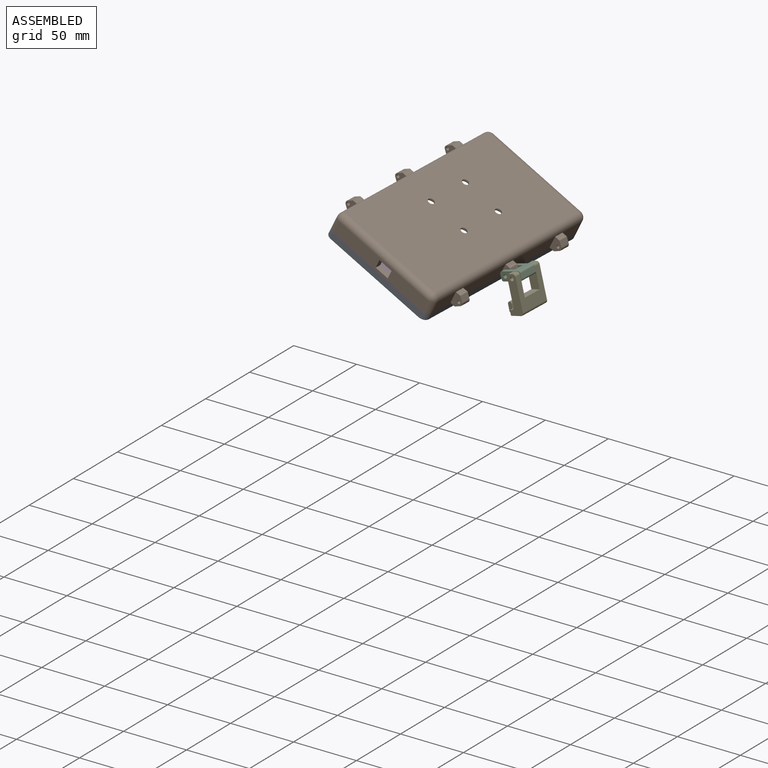
[diagram: assembled view]
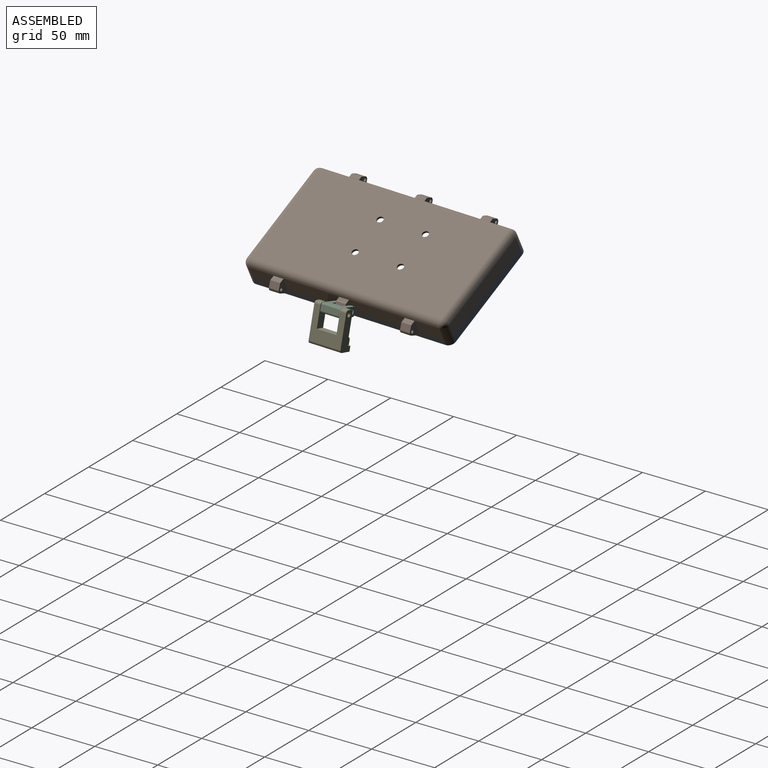
[diagram: assembled view, second angle]
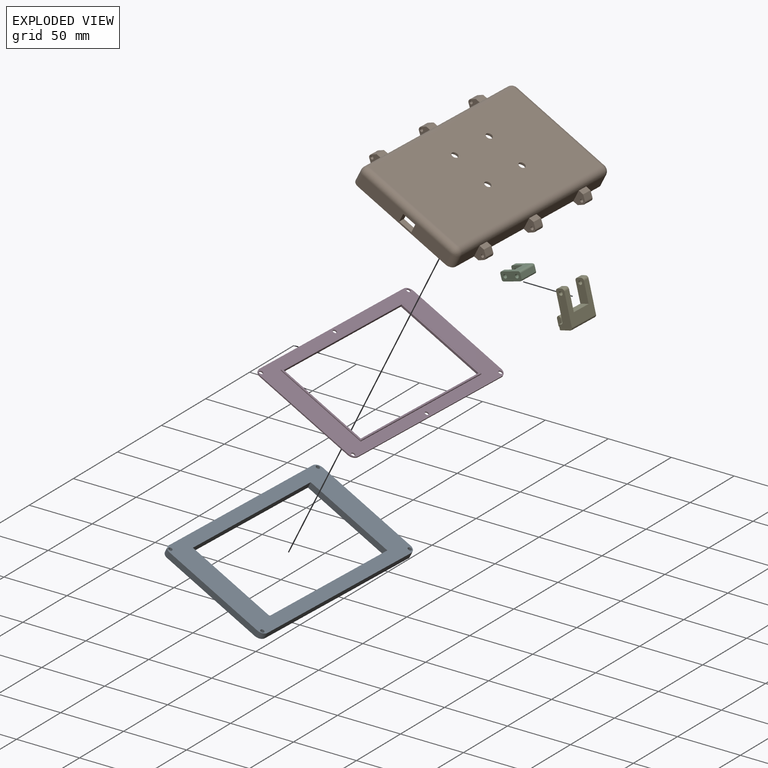
[diagram: exploded view]
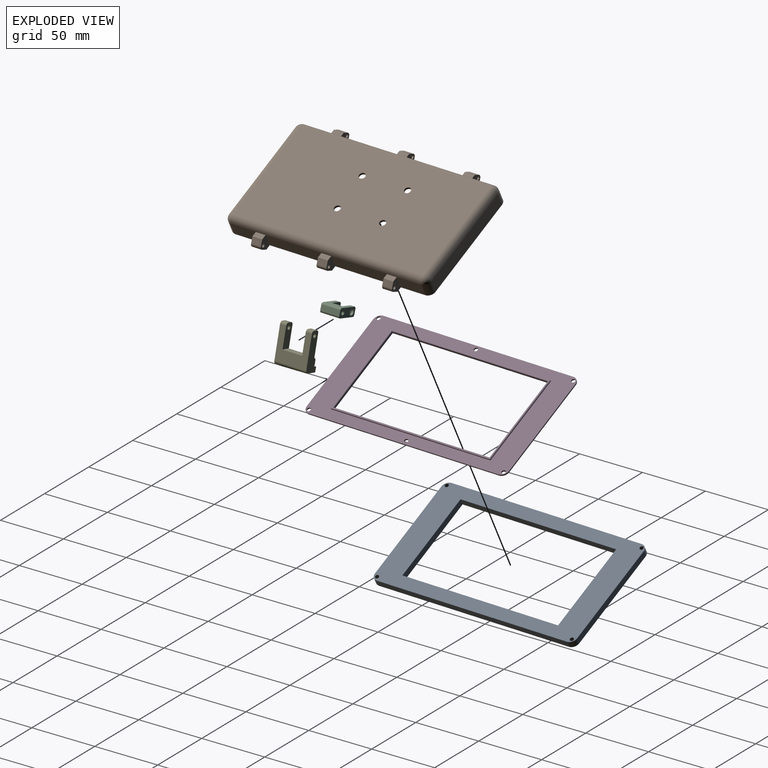
[diagram: exploded view, second angle]
ASSEMBLY  parts=5 mates=4
PART A: 40 faces, bbox 90x165x5 mm
  f0: plane 155x5mm, normal (-1,0,0), area 775mm2, adj f8,f9,f18,f21
  f1: plane 80x5mm, normal (0,-1,0), area 400mm2, adj f8,f9,f18,f19
  f2: plane 155x5mm, normal (1,0,0), area 775mm2, adj f8,f9,f19,f20
  f3: plane 70x5mm, normal (0,1,0), area 350mm2, adj f4,f6,f8,f9
  f4: plane 127x5mm, normal (1,0,0), area 635mm2, adj f3,f5,f8,f9
  f5: plane 70x5mm, normal (0,-1,0), area 350mm2, adj f4,f6,f8,f9
  f6: plane 127x5mm, normal (-1,0,0), area 635mm2, adj f3,f5,f8,f9
  f7: plane 80x5mm, normal (0,1,0), area 400mm2, adj f8,f9,f20,f21
  f8: plane 165x90mm, normal (0,0,1), area 5910.3mm2, adj f0,f1,f2,f3,f4,f5,f6,f7
  f9: plane 165x90mm, normal (0,0,-1), area 5458.5mm2, adj f0,f1,f2,f3,f4,f5,f6,f7
  f10: cylinder r=1.5mm len=4mm, axis (0,0,1), area 37.7mm2, adj f8,f11
  f11: plane 3x3mm, normal (0,0,1), area 7.1mm2, adj f10
  f12: cylinder r=1.5mm len=4mm, axis (0,0,1), area 37.7mm2, adj f8,f13
  f13: plane 3x3mm, normal (0,0,1), area 7.1mm2, adj f12
  f14: cylinder r=1.5mm len=4mm, axis (0,0,1), area 37.7mm2, adj f8,f15
  f15: plane 3x3mm, normal (0,0,1), area 7.1mm2, adj f14
  f16: cylinder r=1.5mm len=4mm, axis (0,0,1), area 37.7mm2, adj f8,f17
  f17: plane 3x3mm, normal (0,0,1), area 7.1mm2, adj f16
  f18: cylinder r=5mm len=5mm, axis (0,0,-1), area 39.3mm2, adj f0,f1,f8,f9
  f19: cylinder r=5mm len=5mm, axis (0,0,1), area 39.3mm2, adj f1,f2,f8,f9
  f20: cylinder r=5mm len=5mm, axis (0,0,-1), area 39.3mm2, adj f2,f7,f8,f9
  f21: cylinder r=5mm len=5mm, axis (0,0,1), area 39.3mm2, adj f0,f7,f8,f9
  f22: plane 4x2mm, normal (0,1,0), area 6.3mm2, adj f9,f39
  f23: plane 4x2mm, normal (0,-1,0), area 6.3mm2, adj f9,f39
  f24: plane 4x2mm, normal (0,1,0), area 6.3mm2, adj f9,f34
  f25: plane 4x2mm, normal (0,-1,0), area 6.3mm2, adj f9,f34
  f26: plane 4x2mm, normal (0,1,0), area 6.3mm2, adj f9,f35
  f27: plane 4x2mm, normal (0,-1,0), area 6.3mm2, adj f9,f35
  f28: plane 4x2mm, normal (0,1,0), area 6.3mm2, adj f9,f36
  f29: plane 4x2mm, normal (0,-1,0), area 6.3mm2, adj f9,f36
  f30: plane 4x2mm, normal (0,1,0), area 6.3mm2, adj f9,f37
  f31: plane 4x2mm, normal (0,-1,0), area 6.3mm2, adj f9,f37
  f32: plane 4x2mm, normal (0,1,0), area 6.3mm2, adj f9,f38
  f33: plane 4x2mm, normal (0,-1,0), area 6.3mm2, adj f9,f38
  f34: cylinder r=2mm len=20mm, axis (0,-1,0), area 125.7mm2, adj f9,f24,f25
  f35: cylinder r=2mm len=20mm, axis (0,-1,0), area 125.7mm2, adj f9,f26,f27
  f36: cylinder r=2mm len=20mm, axis (0,-1,0), area 125.7mm2, adj f9,f28,f29
  f37: cylinder r=2mm len=20mm, axis (0,-1,0), area 125.7mm2, adj f9,f30,f31
  f38: cylinder r=2mm len=20mm, axis (0,-1,0), area 125.7mm2, adj f9,f32,f33
  f39: cylinder r=2mm len=20mm, axis (0,-1,0), area 125.7mm2, adj f9,f22,f23
PART B: 102 faces, bbox 106x165x15 mm
  f0: plane 45.5x10mm, normal (-1,0,0), area 455mm2, adj f11,f26,f81,f84
  f1: plane 45.5x10mm, normal (-1,0,0), area 455mm2, adj f11,f26,f77,f80
  f2: plane 20x10mm, normal (-1,0,0), area 200mm2, adj f11,f26,f28,f76
  f3: plane 45.5x10mm, normal (1,0,0), area 455mm2, adj f11,f20,f48,f58
  f4: plane 20x10mm, normal (1,0,0), area 200mm2, adj f11,f17,f20,f52
  f5: plane 20x10mm, normal (1,0,0), area 200mm2, adj f11,f19,f20,f56
  f6: plane 80x10mm, normal (0,-1,0), area 723mm2, adj f11,f19,f25,f28,f33,f34,f35,f36
  f7: plane 77x9mm, normal (0,1,0), area 616mm2, adj f11,f13,f14,f31,f33,f34,f35,f36
  f8: plane 20x10mm, normal (-1,0,0), area 200mm2, adj f11,f22,f26,f85
  f9: plane 45.5x10mm, normal (1,0,0), area 445.4mm2, adj f11,f20,f39,f50,f53
  f10: plane 80x10mm, normal (0,1,0), area 800mm2, adj f11,f17,f21,f22
  f11: plane 165x98mm, normal (0,0,1), area 3085.5mm2, adj f0,f1,f2,f3,f4,f5,f6,f7
  f12: plane 155x80mm, normal (0,0,-1), area 12321.5mm2, adj f20,f21,f25,f26,f40,f41,f42,f43
  f13: plane 155x9mm, normal (1,0,0), area 1395mm2, adj f7,f11,f15,f29
  f14: plane 155x9mm, normal (-1,0,0), area 1356.5mm2, adj f7,f11,f15,f32,f37
  f15: plane 77x9mm, normal (0,-1,0), area 693mm2, adj f11,f13,f14,f30
  f16: plane 149x71mm, normal (0,0,1), area 10377.9mm2, adj f29,f30,f31,f32,f44,f45,f46,f47
  f17: cylinder r=5mm len=10mm, axis (0,0,-1), area 78.5mm2, adj f4,f10,f11,f18
  f18: sphere r=5mm, area 39.3mm2, adj f17,f20,f21
  f19: cylinder r=5mm len=10mm, axis (0,0,1), area 78.5mm2, adj f5,f6,f11,f23
  f20: cylinder r=5mm len=155mm, axis (0,1,0), area 1217.4mm2, adj f3,f4,f5,f9,f12,f18,f23,f49
  f21: cylinder r=5mm len=80mm, axis (-1,0,0), area 628.3mm2, adj f10,f12,f18,f24
  f22: cylinder r=5mm len=10mm, axis (0,0,1), area 78.5mm2, adj f8,f10,f11,f24
  f23: sphere r=5mm, area 39.3mm2, adj f19,f20,f25
  f24: sphere r=5mm, area 39.3mm2, adj f21,f22,f26
  f25: cylinder r=5mm len=80mm, axis (1,0,0), area 628.3mm2, adj f6,f12,f23,f27
  f26: cylinder r=5mm len=155mm, axis (0,-1,0), area 1217.4mm2, adj f0,f1,f2,f8,f12,f24,f27,f75
  f27: sphere r=5mm, area 39.3mm2, adj f25,f26,f28
  f28: cylinder r=5mm len=10mm, axis (0,0,-1), area 78.5mm2, adj f2,f6,f11,f27
  f29: cylinder r=3mm len=155mm, axis (0,-1,0), area 720.1mm2, adj f13,f16,f30,f31
  f30: cylinder r=3mm len=77mm, axis (-1,0,0), area 352.6mm2, adj f15,f16,f29,f32
  f31: cylinder r=3mm len=77mm, axis (1,0,0), area 352.6mm2, adj f7,f16,f29,f32
  f32: cylinder r=3mm len=155mm, axis (0,1,0), area 720.1mm2, adj f14,f16,f30,f31
  f33: plane 7x5mm, normal (-1,0,0), area 35mm2, adj f6,f7,f34,f36
  f34: plane 11x5mm, normal (0,0,-1), area 55mm2, adj f6,f7,f33,f35
  f35: plane 7x5mm, normal (1,0,0), area 35mm2, adj f6,f7,f34,f36
  f36: plane 11x5mm, normal (0,0,1), area 55mm2, adj f6,f7,f33,f35
  f37: cylinder r=3.5mm len=7mm, axis (-1,0,0), area 66mm2, adj f14,f38
  f38: plane 7x7mm, normal (-1,0,0), area 28.9mm2, adj f37,f39
  f39: cylinder r=1.75mm len=3.5mm, axis (1,0,0), area 38.5mm2, adj f9,f38
  f40: cylinder r=2.5mm len=5mm, axis (0,0,1), area 23.6mm2, adj f12,f46
  f41: cylinder r=2.5mm len=5mm, axis (0,0,1), area 23.6mm2, adj f12,f45
  f42: cylinder r=2.5mm len=5mm, axis (0,0,1), area 23.6mm2, adj f12,f44
  f43: cylinder r=2.5mm len=5mm, axis (0,0,1), area 23.6mm2, adj f12,f47
  f44: cone r=2.5mm half-angle=45deg, axis (0,0,1), area 43.3mm2, adj f16,f42
  f45: cone r=2.5mm half-angle=45deg, axis (0,0,1), area 43.3mm2, adj f16,f41
  f46: cone r=2.5mm half-angle=45deg, axis (0,0,1), area 43.3mm2, adj f16,f40
  f47: cone r=2.5mm half-angle=45deg, axis (0,0,1), area 43.3mm2, adj f16,f43
  f48: plane 10x8mm, normal (0,-1,0), area 58.9mm2, adj f3,f11,f49,f51,f62,f63,f68,f69
  f49: plane 8x4mm, normal (0,0,-1), area 32mm2, adj f20,f48,f50,f63
  f50: plane 10x8mm, normal (0,1,0), area 58.9mm2, adj f9,f11,f49,f51,f62,f63,f68,f69
  f51: plane 8x0.34mm, normal (1,0,0), area 2.7mm2, adj f48,f50,f68,f69
  f52: plane 10x8mm, normal (0,1,0), area 58.9mm2, adj f4,f11,f54,f55,f60,f61,f70,f71
  f53: plane 10x8mm, normal (0,-1,0), area 58.9mm2, adj f9,f11,f54,f55,f60,f61,f70,f71
  f54: plane 8x4mm, normal (0,0,-1), area 32mm2, adj f20,f52,f53,f61
  f55: plane 8x0.34mm, normal (1,0,0), area 2.7mm2, adj f52,f53,f70,f71
  f56: plane 10x8mm, normal (0,-1,0), area 58.9mm2, adj f5,f11,f57,f59,f64,f65,f66,f67
  f57: plane 8x4mm, normal (0,0,-1), area 32mm2, adj f20,f56,f58,f65
  f58: plane 10x8mm, normal (0,1,0), area 58.9mm2, adj f3,f11,f57,f59,f64,f65,f66,f67
  f59: plane 8x0.34mm, normal (1,0,0), area 2.7mm2, adj f56,f58,f66,f67
  f60: plane 8x3.41mm, normal (0.71,0,0.71), area 38.6mm2, adj f11,f52,f53,f70
  f61: plane 8x3.41mm, normal (0.71,0,-0.71), area 38.6mm2, adj f52,f53,f54,f71
  f62: plane 8x3.41mm, normal (0.71,0,0.71), area 38.6mm2, adj f11,f48,f50,f68
  f63: plane 8x3.41mm, normal (0.71,0,-0.71), area 38.6mm2, adj f48,f49,f50,f69
  f64: plane 8x3.41mm, normal (0.71,0,0.71), area 38.6mm2, adj f11,f56,f58,f66
  f65: plane 8x3.41mm, normal (0.71,0,-0.71), area 38.6mm2, adj f56,f57,f58,f67
  f66: cylinder r=2mm len=8mm, axis (0,1,0), area 12.6mm2, adj f56,f58,f59,f64
  f67: cylinder r=2mm len=8mm, axis (0,1,0), area 12.6mm2, adj f56,f58,f59,f65
  f68: cylinder r=2mm len=8mm, axis (0,1,0), area 12.6mm2, adj f48,f50,f51,f62
  f69: cylinder r=2mm len=8mm, axis (0,1,0), area 12.6mm2, adj f48,f50,f51,f63
  f70: cylinder r=2mm len=8mm, axis (0,1,0), area 12.6mm2, adj f52,f53,f55,f60
  f71: cylinder r=2mm len=8mm, axis (0,1,0), area 12.6mm2, adj f52,f53,f55,f61
  f72: cylinder r=1.25mm len=8mm, axis (0,1,0), area 62.8mm2, adj f56,f58
  f73: cylinder r=1.25mm len=8mm, axis (0,1,0), area 62.8mm2, adj f52,f53
  f74: cylinder r=1.25mm len=8mm, axis (0,1,0), area 62.8mm2, adj f48,f50
  f75: plane 8x4mm, normal (0,0,-1), area 32mm2, adj f26,f76,f77,f87
  f76: plane 10x8mm, normal (0,-1,0), area 58.9mm2, adj f2,f11,f75,f78,f87,f88,f97,f98
  f77: plane 10x8mm, normal (0,1,0), area 58.9mm2, adj f1,f11,f75,f78,f87,f88,f97,f98
  f78: plane 8x0.34mm, normal (-1,0,0), area 2.7mm2, adj f76,f77,f97,f98
  f79: plane 8x4mm, normal (0,0,-1), area 32mm2, adj f26,f80,f81,f90
  f80: plane 10x8mm, normal (0,-1,0), area 58.9mm2, adj f1,f11,f79,f82,f89,f90,f95,f96
  f81: plane 10x8mm, normal (0,1,0), area 58.9mm2, adj f0,f11,f79,f82,f89,f90,f95,f96
  f82: plane 8x0.34mm, normal (-1,0,0), area 2.7mm2, adj f80,f81,f95,f96
  f83: plane 8x4mm, normal (0,0,-1), area 32mm2, adj f26,f84,f85,f91
  f84: plane 10x8mm, normal (0,-1,0), area 58.9mm2, adj f0,f11,f83,f86,f91,f92,f93,f94
  f85: plane 10x8mm, normal (0,1,0), area 58.9mm2, adj f8,f11,f83,f86,f91,f92,f93,f94
  f86: plane 8x0.34mm, normal (-1,0,0), area 2.7mm2, adj f84,f85,f93,f94
  f87: plane 8x3.41mm, normal (-0.71,0,-0.71), area 38.6mm2, adj f75,f76,f77,f97
  f88: plane 8x3.41mm, normal (-0.71,0,0.71), area 38.6mm2, adj f11,f76,f77,f98
  f89: plane 8x3.41mm, normal (-0.71,0,0.71), area 38.6mm2, adj f11,f80,f81,f95
  f90: plane 8x3.41mm, normal (-0.71,0,-0.71), area 38.6mm2, adj f79,f80,f81,f96
  f91: plane 8x3.41mm, normal (-0.71,0,-0.71), area 38.6mm2, adj f83,f84,f85,f93
  f92: plane 8x3.41mm, normal (-0.71,0,0.71), area 38.6mm2, adj f11,f84,f85,f94
  f93: cylinder r=2mm len=8mm, axis (0,-1,0), area 12.6mm2, adj f84,f85,f86,f91
  f94: cylinder r=2mm len=8mm, axis (0,-1,0), area 12.6mm2, adj f84,f85,f86,f92
  f95: cylinder r=2mm len=8mm, axis (0,-1,0), area 12.6mm2, adj f80,f81,f82,f89
  f96: cylinder r=2mm len=8mm, axis (0,-1,0), area 12.6mm2, adj f80,f81,f82,f90
  f97: cylinder r=2mm len=8mm, axis (0,-1,0), area 12.6mm2, adj f76,f77,f78,f87
  f98: cylinder r=2mm len=8mm, axis (0,-1,0), area 12.6mm2, adj f76,f77,f78,f88
  f99: cylinder r=1.25mm len=8mm, axis (0,1,0), area 62.8mm2, adj f84,f85
  f100: cylinder r=1.25mm len=8mm, axis (0,1,0), area 62.8mm2, adj f80,f81
  f101: cylinder r=1.25mm len=8mm, axis (0,1,0), area 62.8mm2, adj f76,f77
PART C: 21 faces, bbox 7x17x15.5 mm
  f0: cylinder r=1.5mm len=3mm, axis (0,0,-1), area 14.1mm2, adj f17,f20
  f1: plane 4x3.5mm, normal (0,1,0), area 14mm2, adj f11,f12,f15,f18
  f2: plane 15.5x14mm, normal (-1,0,0), area 144mm2, adj f4,f10,f11,f12,f13,f16,f17,f18
  f3: plane 15.5x14mm, normal (1,0,0), area 144mm2, adj f5,f10,f11,f14,f15,f16,f17,f18
  f4: cylinder r=1.5mm len=3.5mm, axis (0,0,1), area 8.2mm2, adj f2,f6,f10,f17
  f5: cylinder r=1.5mm len=3.5mm, axis (0,0,-1), area 8.2mm2, adj f3,f6,f10,f17
  f6: plane 4x3.5mm, normal (0,1,0), area 14mm2, adj f4,f5,f10,f17
  f7: plane 15.5x4mm, normal (0,-1,0), area 62mm2, adj f10,f11,f13,f14
  f8: cylinder r=1.5mm len=3.5mm, axis (0,0,-1), area 33mm2, adj f11,f18
  f9: cylinder r=1.5mm len=15.5mm, axis (0,0,-1), area 146.1mm2, adj f10,f11
  f10: plane 17x7mm, normal (0,0,1), area 94.1mm2, adj f2,f3,f4,f5,f6,f7,f9,f13
  f11: plane 17x7mm, normal (0,0,-1), area 102.9mm2, adj f1,f2,f3,f7,f8,f9,f12,f13
  f12: cylinder r=1.5mm len=3.5mm, axis (0,0,1), area 8.2mm2, adj f1,f2,f11,f18
  f13: cylinder r=1.5mm len=15.5mm, axis (0,0,-1), area 36.5mm2, adj f2,f7,f10,f11
  f14: cylinder r=1.5mm len=15.5mm, axis (0,0,1), area 36.5mm2, adj f3,f7,f10,f11
  f15: cylinder r=1.5mm len=3.5mm, axis (0,0,-1), area 8.2mm2, adj f1,f3,f11,f18
  f16: plane 8.5x7mm, normal (0,1,0), area 59.5mm2, adj f2,f3,f17,f18
  f17: plane 10.08x7mm, normal (0,0,-1), area 62.5mm2, adj f0,f2,f3,f4,f5,f6,f16
  f18: plane 10.08x7mm, normal (0,0,1), area 62.5mm2, adj f1,f2,f3,f8,f12,f15,f16
  f19: cylinder r=2.25mm len=4.5mm, axis (0,0,1), area 28.3mm2, adj f10,f20
  f20: plane 4.5x4.5mm, normal (0,0,1), area 8.8mm2, adj f0,f19
PART D: 33 faces, bbox 90x165x2 mm
  f0: plane 165x90mm, normal (0,0,1), area 5296.1mm2, adj f1,f2,f3,f8,f10,f11,f12,f13
  f1: plane 155x1mm, normal (-1,0,0), area 155mm2, adj f0,f9,f16,f19
  f2: plane 80x1mm, normal (0,-1,0), area 80mm2, adj f0,f9,f16,f17
  f3: plane 155x1mm, normal (1,0,0), area 155mm2, adj f0,f9,f17,f18
  f4: plane 70x1.5mm, normal (0,1,0), area 105mm2, adj f5,f7,f9,f31
  f5: plane 127x1.5mm, normal (1,0,0), area 190.5mm2, adj f4,f6,f9,f29
  f6: plane 70x1.5mm, normal (0,-1,0), area 105mm2, adj f5,f7,f9,f30
  f7: plane 127x1.5mm, normal (-1,0,0), area 190.5mm2, adj f4,f6,f9,f32
  f8: plane 80x1mm, normal (0,1,0), area 80mm2, adj f0,f9,f18,f19
  f9: plane 165x90mm, normal (0,0,-1), area 5896.1mm2, adj f1,f2,f3,f4,f5,f6,f7,f8
  f10: cylinder r=1.5mm len=3mm, axis (0,0,1), area 9.4mm2, adj f0,f9
  f11: cylinder r=1.5mm len=3mm, axis (0,0,1), area 9.4mm2, adj f0,f9
  f12: cylinder r=1.5mm len=3mm, axis (0,0,1), area 9.4mm2, adj f0,f9
  f13: cylinder r=1.5mm len=3mm, axis (0,0,1), area 9.4mm2, adj f0,f9
  f14: cylinder r=1.5mm len=3mm, axis (0,0,1), area 9.4mm2, adj f0,f9
  f15: cylinder r=1.5mm len=3mm, axis (0,0,1), area 9.4mm2, adj f0,f9
  f16: cylinder r=5mm len=5mm, axis (0,0,-1), area 7.9mm2, adj f0,f1,f2,f9
  f17: cylinder r=5mm len=5mm, axis (0,0,1), area 7.9mm2, adj f0,f2,f3,f9
  f18: cylinder r=5mm len=5mm, axis (0,0,-1), area 7.9mm2, adj f0,f3,f8,f9
  f19: cylinder r=5mm len=5mm, axis (0,0,1), area 7.9mm2, adj f0,f1,f8,f9
  f20: plane 73x0.5mm, normal (0,1,0), area 36.5mm2, adj f0,f21,f23,f25
  f21: plane 130x0.5mm, normal (-1,0,0), area 65mm2, adj f0,f20,f22,f26
  f22: plane 73x0.5mm, normal (0,-1,0), area 36.5mm2, adj f0,f21,f23,f28
  f23: plane 130x0.5mm, normal (1,0,0), area 65mm2, adj f0,f20,f22,f27
  f24: plane 129x72mm, normal (0,0,1), area 200mm2, adj f25,f26,f27,f28,f29,f30,f31,f32
  f25: cylinder r=0.5mm len=73mm, axis (1,0,0), area 57mm2, adj f20,f24,f26,f27
  f26: cylinder r=0.5mm len=130mm, axis (0,1,0), area 101.8mm2, adj f21,f24,f25,f28
  f27: cylinder r=0.5mm len=130mm, axis (0,-1,0), area 101.8mm2, adj f23,f24,f25,f28
  f28: cylinder r=0.5mm len=73mm, axis (-1,0,0), area 57mm2, adj f22,f24,f26,f27
  f29: cylinder r=0.5mm len=128mm, axis (0,-1,0), area 100mm2, adj f5,f24,f30,f31
  f30: cylinder r=0.5mm len=71mm, axis (-1,0,0), area 55.3mm2, adj f6,f24,f29,f32
  f31: cylinder r=0.5mm len=71mm, axis (1,0,0), area 55.3mm2, adj f4,f24,f29,f32
  f32: cylinder r=0.5mm len=128mm, axis (0,1,0), area 100mm2, adj f7,f24,f30,f31
PART E: 28 faces, bbox 14.5x29x26 mm
  f0: plane 26x10.5mm, normal (0,1,0), area 257mm2, adj f4,f15,f16,f20,f24,f25,f26,f27
  f1: plane 18x4.5mm, normal (-1,0,0), area 81mm2, adj f4,f6,f25,f27
  f2: plane 18x2.5mm, normal (1,0,0), area 45mm2, adj f3,f5,f25,f27
  f3: plane 26x2.5mm, normal (0,-1,0), area 57mm2, adj f2,f15,f16,f17,f24,f25,f26,f27
  f4: cylinder r=2mm len=18mm, axis (0,0,1), area 56.5mm2, adj f0,f1,f25,f27
  f5: cylinder r=2mm len=18mm, axis (0,0,1), area 47.5mm2, adj f2,f6,f25,f27
  f6: cylinder r=2mm len=18mm, axis (0,0,-1), area 47.5mm2, adj f1,f5,f25,f27
  f7: plane 5x3mm, normal (0,-1,0), area 15mm2, adj f15,f18,f19,f23
  f8: plane 26x21mm, normal (-1,0,0), area 290mm2, adj f11,f15,f16,f17,f18,f21,f22,f23
  f9: plane 26x25mm, normal (1,0,0), area 394mm2, adj f12,f15,f16,f19,f20,f21,f22,f23
  f10: cylinder r=1.5mm len=5mm, axis (0,0,-1), area 47.1mm2, adj f16,f22
  f11: cylinder r=2mm len=5mm, axis (0,0,1), area 15.7mm2, adj f8,f13,f16,f22
  f12: cylinder r=2mm len=5mm, axis (0,0,-1), area 15.7mm2, adj f9,f13,f16,f22
  f13: plane 5x3mm, normal (0,-1,0), area 15mm2, adj f11,f12,f16,f22
  f14: cylinder r=1.5mm len=5mm, axis (0,0,-1), area 47.1mm2, adj f15,f23
  f15: plane 29x10.5mm, normal (0,0,1), area 208.2mm2, adj f0,f3,f7,f8,f9,f14,f17,f18
  f16: plane 29x10.5mm, normal (0,0,-1), area 208.2mm2, adj f0,f3,f8,f9,f10,f11,f12,f13
  f17: cylinder r=2mm len=26mm, axis (0,0,1), area 81.7mm2, adj f3,f8,f15,f16
  f18: cylinder r=2mm len=5mm, axis (0,0,1), area 15.7mm2, adj f7,f8,f15,f23
  f19: cylinder r=2mm len=5mm, axis (0,0,-1), area 15.7mm2, adj f7,f9,f15,f23
  f20: cylinder r=2mm len=26mm, axis (0,0,-1), area 81.7mm2, adj f0,f9,f15,f16
  f21: plane 16x7mm, normal (0,-1,0), area 112mm2, adj f8,f9,f22,f23
  f22: plane 18x7mm, normal (0,0,1), area 117.2mm2, adj f8,f9,f10,f11,f12,f13,f21
  f23: plane 18x7mm, normal (0,0,-1), area 117.2mm2, adj f7,f8,f9,f14,f18,f19,f21
  f24: plane 4x4mm, normal (-1,0,0), area 16mm2, adj f0,f3,f16,f25
  f25: plane 8.44x4mm, normal (0,0,-1), area 26.9mm2, adj f0,f1,f2,f3,f4,f5,f6,f24
  f26: plane 4x4mm, normal (-1,0,0), area 16mm2, adj f0,f3,f15,f27
  f27: plane 8.44x4mm, normal (0,0,1), area 26.9mm2, adj f0,f1,f2,f3,f4,f5,f6,f26
PLACE A rot(axis=(0.23,0,0.97),177.9deg) t=(-57.23,-44.16,33.04)mm
PLACE B rot(axis=(-0.02,-1,0),153.4deg) t=(-41.74,120.4,51.6)mm
PLACE C rot(axis=(-0.68,0.53,0.5),110.1deg) t=(-2.45,28.85,22.98)mm
PLACE D rot(axis=(0.23,0,0.97),177.9deg) t=(-54.99,-44.24,37.51)mm
PLACE E rot(axis=(-0.98,-0.1,-0.14),91.2deg) t=(0.53,23.23,16.49)mm
MATE fastened B.f11 <-> D.f0  axis (-0.45,0.02,-0.89) through (-53.98,38.28,39.54)mm
MATE fastened A.f12 <-> D.f14  axis (0.45,-0.02,0.89) through (-89.02,119.15,57.35)mm
MATE revolute E.f10 <-> C.f9  axis (-0.04,-1,0) through (2.92,44.16,24.35)mm
MATE revolute B.f99 <-> C.f0  axis (-0.04,-1,0) through (-7.12,32.52,21.57)mm
